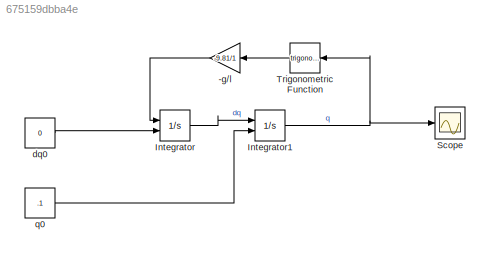
MODEL slx_675159dbba4e
KIND model
CONFIG AbsTol = auto
CONFIG EnableMultiTasking = off
CONFIG FixedStep = auto
CONFIG MaxStep = .001
CONFIG MinStep = auto
CONFIG RelTol = 1e-3
CONFIG SampleTimeConstraint = Unconstrained
CONFIG SolverName = VariableStepAuto
CONFIG StartTime = 0.0
CONFIG StopTime = 10.0
BLOCK [Gain] -g//l
  Gain = -9.81/1
BLOCK [Integrator] Integrator
  InitialConditionSource = external
  Ports = [2, 1]
BLOCK [Integrator] Integrator1
  InitialConditionSource = external
  Ports = [2, 1]
BLOCK [Scope] Scope
  Floating = off
  NumInputPorts = 1
  Ports = [1]
  ScopeSpecificationString = Simulink.scopes.TimeScopeBlockCfg('CurrentConfiguration', extmgr.ConfigurationSet(extmgr.Configuration('Core','General UI',true),extmgr.Configuration('Core','Source UI',true),extmgr.Configuration('Sources','WiredSimulink',true),extmgr.Configuration('Visuals','Time Domain',true,'SerializedDisplays',{struct('MinYLimReal','-0.125','MaxYLimReal','0.125','YLabelReal','','MinYLimMag','0.00000','MaxYLimM...<+1338ch>
BLOCK [Trigonometry] Trigonometric Function
  Ports = [1, 1]
BLOCK [Constant] dq0
  Value = 0
BLOCK [Constant] q0
  Value = .1
LINE -g//l:1 -> Integrator:1
NET Integrator1:1 -> Scope:1, Trigonometric Function:1
LINE Integrator:1 -> Integrator1:1
LINE Trigonometric Function:1 -> -g//l:1
LINE dq0:1 -> Integrator:2
LINE q0:1 -> Integrator1:2
note: NET lines group one-source signal fan-out (src -> all destinations, sorted); 1:1 wires keep LINE
